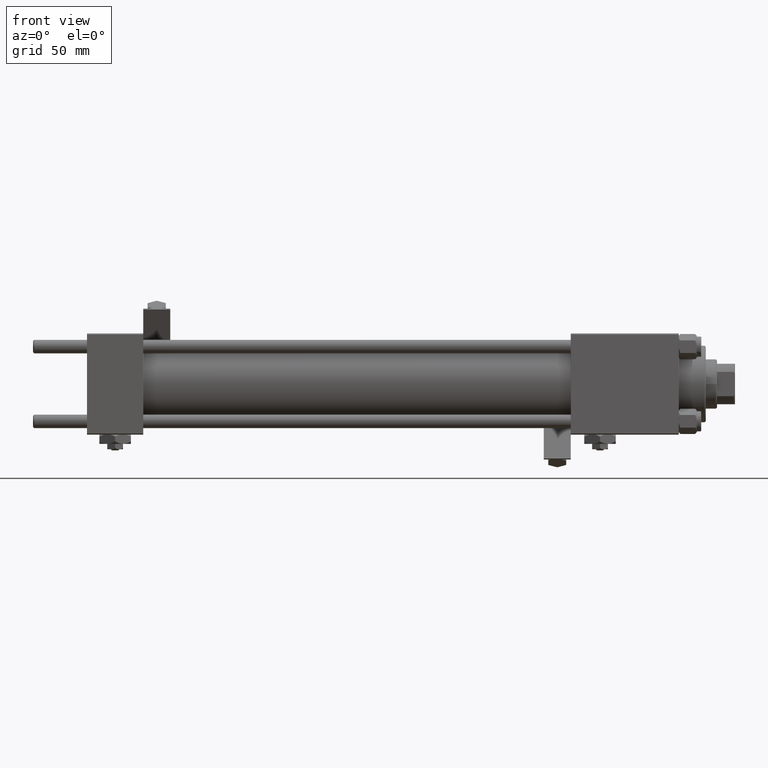
[diagram: clean part render]
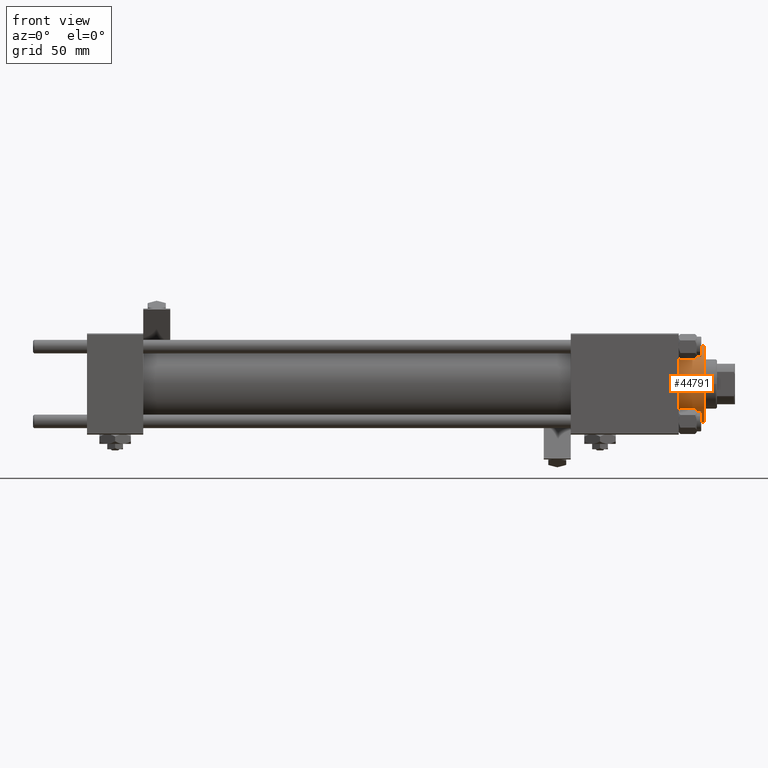
[diagram: same view with one face highlighted and labeled with its STEP entity id]
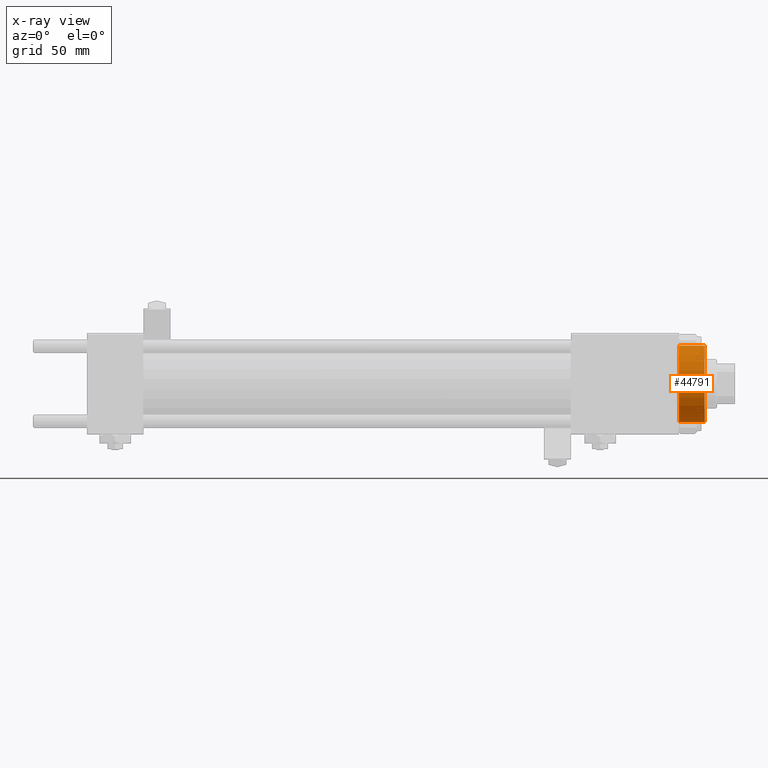
[diagram: x-ray of the same camera — body ghosted, the highlighted face saturated]
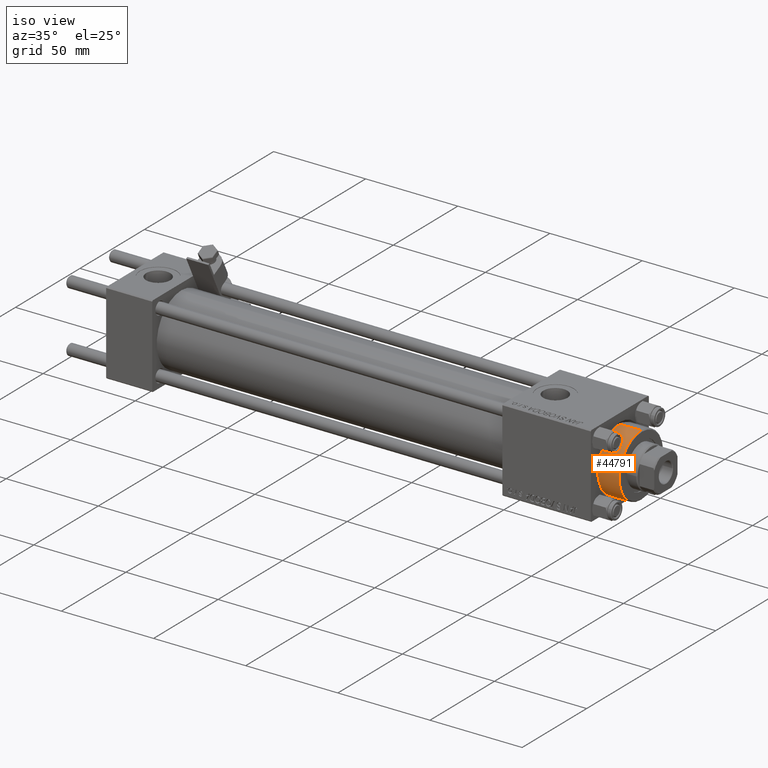
[diagram: same view with one face highlighted and labeled with its STEP entity id]
A machine part, front view. The second image highlights one B-rep face of the part: STEP entity #44791.
The next image is the same camera in x-ray: the body ghosted, the highlighted face saturated — about 0% of this face is hidden behind the body in this view.
A second angle (iso view) of the same face is appended — the face is thin or edge-on in the first view.
In plain terms, the highlighted cylindrical surface (partial cylindrical patch) has radius 17 mm, axis along (-1, -0, 0).
Its self-contained STEP definition (entity closure, byte-faithful):
#496 = CARTESIAN_POINT ( 'NONE',  ( -17.00000000000000000, 0.000000000000000000, 40.70000000000000284 ) ) ;
#1681 = CARTESIAN_POINT ( 'NONE',  ( 0.000000000000000000, 0.000000000000000000, 40.70000000000000284 ) ) ;
#1788 = ORIENTED_EDGE ( 'NONE', *, *, #30672, .T. ) ;
#5961 = FACE_OUTER_BOUND ( 'NONE', #26419, .T. ) ;
#7343 = CARTESIAN_POINT ( 'NONE',  ( 0.000000000000000000, 0.000000000000000000, 28.69999999999999929 ) ) ;
#7762 = CARTESIAN_POINT ( 'NONE',  ( 17.00000000000000000, 2.081899558550500280E-15, 40.19999999999999574 ) ) ;
#10129 = VECTOR ( 'NONE', #40377, 1000.000000000000000 ) ;
#11126 = CARTESIAN_POINT ( 'NONE',  ( 17.00000000000000000, 2.081899558550500280E-15, 28.69999999999999929 ) ) ;
#13076 = VERTEX_POINT ( 'NONE', #39769 ) ;
#13092 = DIRECTION ( 'NONE',  ( 1.000000000000000000, 0.000000000000000000, 0.000000000000000000 ) ) ;
#13871 = DIRECTION ( 'NONE',  ( 0.000000000000000000, 0.000000000000000000, 1.000000000000000000 ) ) ;
#13985 = DIRECTION ( 'NONE',  ( -1.000000000000000000, 0.000000000000000000, 0.000000000000000000 ) ) ;
#15368 = VERTEX_POINT ( 'NONE', #46184 ) ;
#19652 = DIRECTION ( 'NONE',  ( 1.000000000000000000, 0.000000000000000000, 0.000000000000000000 ) ) ;
#22567 = ORIENTED_EDGE ( 'NONE', *, *, #40107, .T. ) ;
#25253 = CARTESIAN_POINT ( 'NONE',  ( 17.00000000000000000, 2.081899558550500280E-15, 40.70000000000000284 ) ) ;
#25779 = LINE ( 'NONE', #25253, #33015 ) ;
#26091 = VERTEX_POINT ( 'NONE', #7762 ) ;
#26419 = EDGE_LOOP ( 'NONE', ( #47182, #40877, #22567, #1788 ) ) ;
#29894 = AXIS2_PLACEMENT_3D ( 'NONE', #1681, #48139, #13985 ) ;
#30672 = EDGE_CURVE ( 'NONE', #13076, #50216, #41482, .T. ) ;
#31804 = CYLINDRICAL_SURFACE ( 'NONE', #29894, 17.00000000000000000 ) ;
#32622 = CARTESIAN_POINT ( 'NONE',  ( 0.000000000000000000, 0.000000000000000000, 40.19999999999999574 ) ) ;
#33015 = VECTOR ( 'NONE', #37027, 1000.000000000000000 ) ;
#33413 = DIRECTION ( 'NONE',  ( 0.000000000000000000, 0.000000000000000000, -1.000000000000000000 ) ) ;
#37027 = DIRECTION ( 'NONE',  ( -0.000000000000000000, -0.000000000000000000, -1.000000000000000000 ) ) ;
#37697 = EDGE_CURVE ( 'NONE', #26091, #50216, #25779, .T. ) ;
#39769 = CARTESIAN_POINT ( 'NONE',  ( -17.00000000000000000, 0.000000000000000000, 28.69999999999999929 ) ) ;
#40107 = EDGE_CURVE ( 'NONE', #15368, #13076, #44407, .T. ) ;
#40377 = DIRECTION ( 'NONE',  ( -0.000000000000000000, -0.000000000000000000, -1.000000000000000000 ) ) ;
#40877 = ORIENTED_EDGE ( 'NONE', *, *, #41692, .T. ) ;
#40895 = AXIS2_PLACEMENT_3D ( 'NONE', #32622, #33413, #13092 ) ;
#41482 = CIRCLE ( 'NONE', #44924, 17.00000000000000000 ) ;
#41692 = EDGE_CURVE ( 'NONE', #26091, #15368, #41744, .T. ) ;
#41744 = CIRCLE ( 'NONE', #40895, 17.00000000000000000 ) ;
#44407 = LINE ( 'NONE', #496, #10129 ) ;
#44791 = ADVANCED_FACE ( 'NONE', ( #5961 ), #31804, .T. ) ;
#44924 = AXIS2_PLACEMENT_3D ( 'NONE', #7343, #13871, #19652 ) ;
#46184 = CARTESIAN_POINT ( 'NONE',  ( -17.00000000000000000, 0.000000000000000000, 40.19999999999999574 ) ) ;
#47182 = ORIENTED_EDGE ( 'NONE', *, *, #37697, .F. ) ;
#48139 = DIRECTION ( 'NONE',  ( -0.000000000000000000, -0.000000000000000000, -1.000000000000000000 ) ) ;
#50216 = VERTEX_POINT ( 'NONE', #11126 ) ;